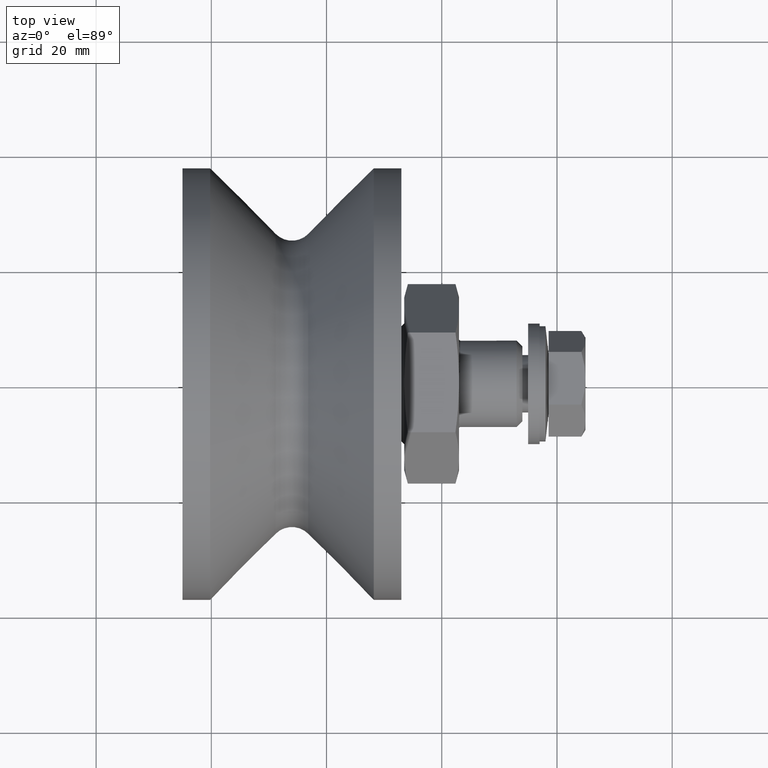
[diagram: clean part render]
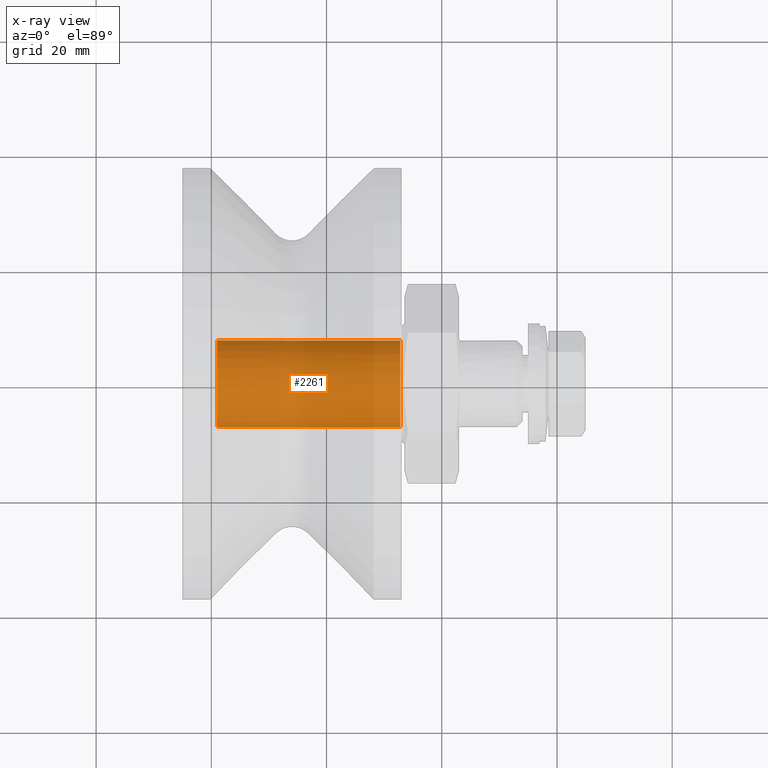
[diagram: x-ray — body ghosted, one internal face saturated and labeled with its STEP entity id]
A machine part, top view, then the same camera in x-ray: the body is ghosted and one INTERNAL B-rep face — a face not visible from any outside direction — is saturated and labeled: STEP entity #2261.
In plain terms, the highlighted cylindrical surface (bore or boss wall) has radius 7.5 mm, axis along (1, 0, 0).
Its self-contained STEP definition (entity closure, byte-faithful):
#318=LINE('',#3691,#406);
#406=VECTOR('',#2983,7.5);
#488=CYLINDRICAL_SURFACE('',#2641,7.5);
#516=FACE_OUTER_BOUND('',#653,.T.);
#653=EDGE_LOOP('',(#1580,#1581,#1582,#1583,#1584,#1585));
#832=CIRCLE('',#2637,7.5);
#835=CIRCLE('',#2640,7.5);
#836=CIRCLE('',#2642,7.5);
#837=CIRCLE('',#2643,7.5);
#992=VERTEX_POINT('',#3682);
#993=VERTEX_POINT('',#3683);
#995=VERTEX_POINT('',#3690);
#996=VERTEX_POINT('',#3692);
#1228=EDGE_CURVE('',#992,#993,#832,.T.);
#1231=EDGE_CURVE('',#993,#992,#835,.T.);
#1232=EDGE_CURVE('',#992,#995,#318,.T.);
#1233=EDGE_CURVE('',#996,#995,#836,.T.);
#1234=EDGE_CURVE('',#995,#996,#837,.T.);
#1580=ORIENTED_EDGE('',*,*,#1228,.F.);
#1581=ORIENTED_EDGE('',*,*,#1232,.T.);
#1582=ORIENTED_EDGE('',*,*,#1233,.F.);
#1583=ORIENTED_EDGE('',*,*,#1234,.F.);
#1584=ORIENTED_EDGE('',*,*,#1232,.F.);
#1585=ORIENTED_EDGE('',*,*,#1231,.F.);
#2261=ADVANCED_FACE('',(#516),#488,.T.);
#2637=AXIS2_PLACEMENT_3D('',#3684,#2973,#2974);
#2640=AXIS2_PLACEMENT_3D('',#3688,#2979,#2980);
#2641=AXIS2_PLACEMENT_3D('',#3689,#2981,#2982);
#2642=AXIS2_PLACEMENT_3D('',#3693,#2984,#2985);
#2643=AXIS2_PLACEMENT_3D('',#3694,#2986,#2987);
#2973=DIRECTION('center_axis',(1.,0.,0.));
#2974=DIRECTION('ref_axis',(0.,-1.,1.22464679914735E-16));
#2979=DIRECTION('center_axis',(1.,0.,0.));
#2980=DIRECTION('ref_axis',(0.,-1.,1.22464679914735E-16));
#2981=DIRECTION('center_axis',(1.,0.,0.));
#2982=DIRECTION('ref_axis',(0.,1.,0.));
#2983=DIRECTION('',(-1.,0.,0.));
#2984=DIRECTION('center_axis',(-1.,0.,0.));
#2985=DIRECTION('ref_axis',(0.,-1.,0.));
#2986=DIRECTION('center_axis',(-1.,0.,0.));
#2987=DIRECTION('ref_axis',(0.,-1.,0.));
#3682=CARTESIAN_POINT('',(32.8,-7.5,-9.18485099360515E-16));
#3683=CARTESIAN_POINT('',(32.8,-9.18485099360515E-16,7.5));
#3684=CARTESIAN_POINT('Origin',(32.8,0.,0.));
#3688=CARTESIAN_POINT('Origin',(32.8,0.,0.));
#3689=CARTESIAN_POINT('Origin',(16.5,0.,0.));
#3690=CARTESIAN_POINT('',(1.,-7.5,-9.18485099360515E-16));
#3691=CARTESIAN_POINT('',(16.5,-7.5,-9.18485099360515E-16));
#3692=CARTESIAN_POINT('',(1.,7.5,-9.18485099360515E-16));
#3693=CARTESIAN_POINT('Origin',(1.,0.,0.));
#3694=CARTESIAN_POINT('Origin',(1.,0.,0.));